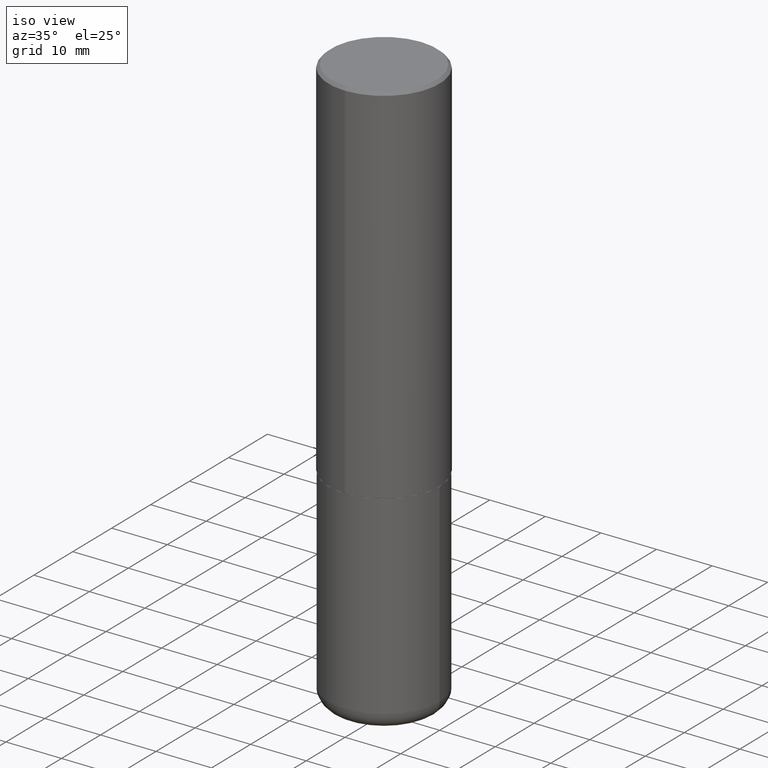
[diagram: clean part render]
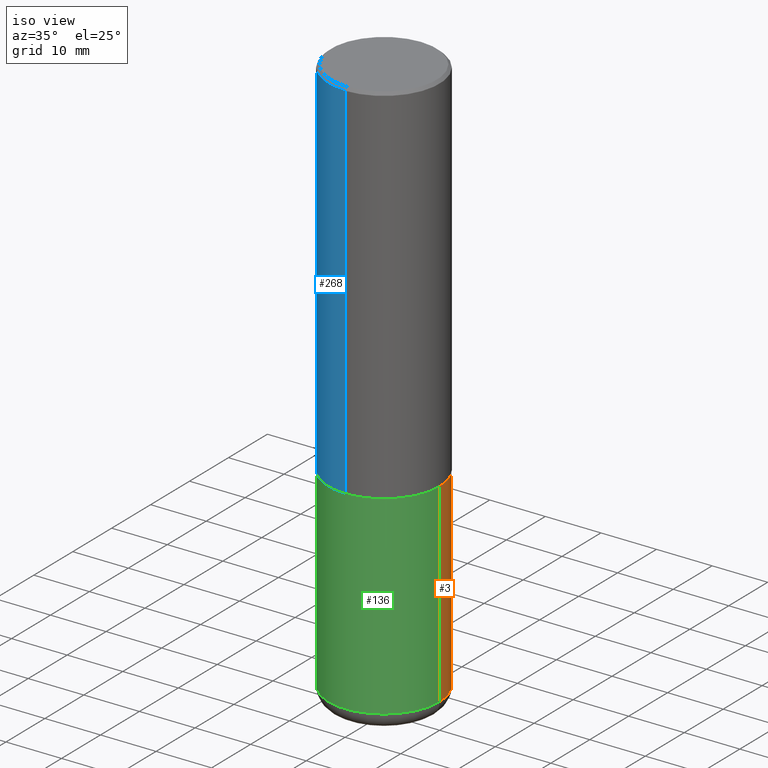
[diagram: same view with three faces highlighted in distinct colors, each labeled with its STEP entity id]
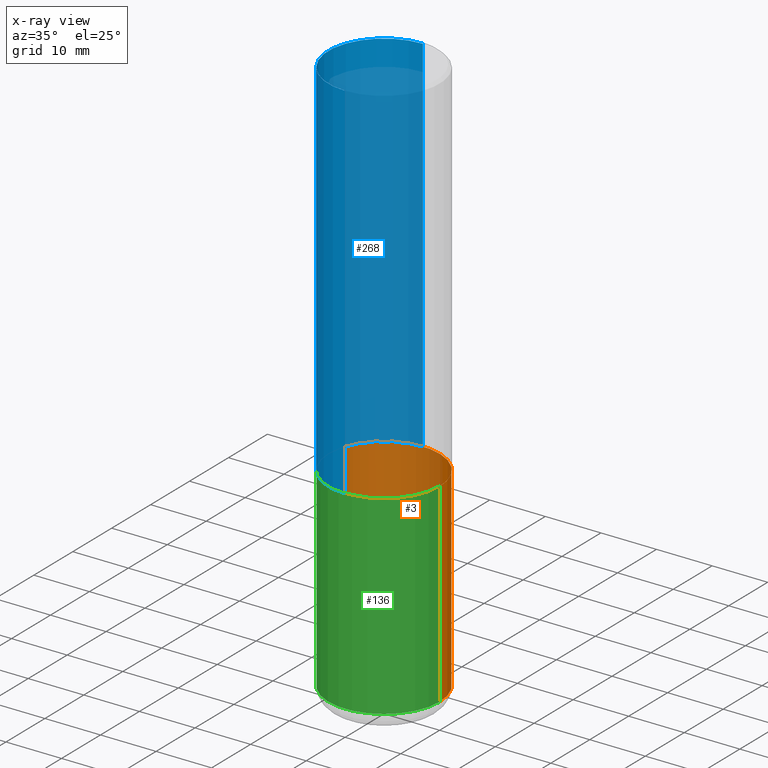
[diagram: x-ray of the same camera — body ghosted, the three highlighted faces saturated]
A machine part, iso view with three faces highlighted in distinct colors.
The next image is the same camera in x-ray (body ghosted, the three faces saturated) — at least one of them is partly hidden behind the body in this view.
Their STEP definitions:

[orange] entity #3 — the highlighted cylindrical surface (partial cylindrical patch) has radius 10 mm, axis along (-0, 0, 1).
#3 = ADVANCED_FACE ( 'NONE', ( #334 ), #310, .T. ) ;
#11 = EDGE_CURVE ( 'NONE', #249, #54, #410, .T. ) ;
#23 = DIRECTION ( 'NONE',  ( 1.000000000000000000, -6.982962677686267499E-15, 0.000000000000000000 ) ) ;
#25 = ORIENTED_EDGE ( 'NONE', *, *, #107, .T. ) ;
#39 = CIRCLE ( 'NONE', #179, 0.3937000000000000499 ) ;
#54 = VERTEX_POINT ( 'NONE', #199 ) ;
#56 = ORIENTED_EDGE ( 'NONE', *, *, #11, .T. ) ;
#66 = CARTESIAN_POINT ( 'NONE',  ( 0.3937000000000000499, -1.182145751705511584E-14, -2.598400000000000265 ) ) ;
#91 = VERTEX_POINT ( 'NONE', #66 ) ;
#94 = VERTEX_POINT ( 'NONE', #171 ) ;
#107 = EDGE_CURVE ( 'NONE', #94, #249, #162, .T. ) ;
#127 = DIRECTION ( 'NONE',  ( 1.000000000000000000, -6.982962677686265922E-15, 4.876176775795935793E-29 ) ) ;
#137 = DIRECTION ( 'NONE',  ( 1.000000000000000000, -6.982962677686267499E-15, 0.000000000000000000 ) ) ;
#151 = CARTESIAN_POINT ( 'NONE',  ( 6.354306145991459756E-29, -9.072265110850031044E-15, -2.598400000000000265 ) ) ;
#154 = CARTESIAN_POINT ( 'NONE',  ( 0.000000000000000000, 0.000000000000000000, 0.000000000000000000 ) ) ;
#160 = DIRECTION ( 'NONE',  ( -2.445468806185136877E-29, 3.491481338843145188E-15, 1.000000000000000000 ) ) ;
#162 = CIRCLE ( 'NONE', #185, 0.3937000000000000499 ) ;
#171 = CARTESIAN_POINT ( 'NONE',  ( 0.3937000000000000499, -1.663271880198097216E-14, -3.976400000000000823 ) ) ;
#176 = CARTESIAN_POINT ( 'NONE',  ( -0.3937000000000000499, -1.108611964508837021E-14, -3.976400000000000823 ) ) ;
#179 = AXIS2_PLACEMENT_3D ( 'NONE', #151, #284, #23 ) ;
#183 = LINE ( 'NONE', #409, #408 ) ;
#185 = AXIS2_PLACEMENT_3D ( 'NONE', #393, #324, #137 ) ;
#199 = CARTESIAN_POINT ( 'NONE',  ( -0.3937000000000000499, -8.680489002625445206E-15, -2.598400000000000265 ) ) ;
#227 = CARTESIAN_POINT ( 'NONE',  ( -0.3937000000000000499, 2.797406750687514786E-15, -1.936584745033356735E-29 ) ) ;
#247 = ORIENTED_EDGE ( 'NONE', *, *, #383, .F. ) ;
#249 = VERTEX_POINT ( 'NONE', #176 ) ;
#258 = DIRECTION ( 'NONE',  ( -2.445468806185136877E-29, 3.491481338843145188E-15, 1.000000000000000000 ) ) ;
#276 = EDGE_LOOP ( 'NONE', ( #25, #56, #417, #247 ) ) ;
#281 = DIRECTION ( 'NONE',  ( -2.445468806185136597E-29, 3.491481338843145583E-15, 1.000000000000000000 ) ) ;
#284 = DIRECTION ( 'NONE',  ( -2.445468806185136597E-29, 3.491481338843145583E-15, 1.000000000000000000 ) ) ;
#310 = CYLINDRICAL_SURFACE ( 'NONE', #376, 0.3937000000000000499 ) ;
#324 = DIRECTION ( 'NONE',  ( -2.445468806185136597E-29, 3.491481338843145583E-15, 1.000000000000000000 ) ) ;
#334 = FACE_OUTER_BOUND ( 'NONE', #276, .T. ) ;
#376 = AXIS2_PLACEMENT_3D ( 'NONE', #154, #281, #127 ) ;
#383 = EDGE_CURVE ( 'NONE', #94, #91, #183, .T. ) ;
#385 = VECTOR ( 'NONE', #258, 39.37007874015748143 ) ;
#391 = EDGE_CURVE ( 'NONE', #91, #54, #39, .T. ) ;
#393 = CARTESIAN_POINT ( 'NONE',  ( 9.724162160914578265E-29, -1.388352639577588736E-14, -3.976400000000000823 ) ) ;
#408 = VECTOR ( 'NONE', #160, 39.37007874015748143 ) ;
#409 = CARTESIAN_POINT ( 'NONE',  ( 0.3937000000000000499, -2.749192406205083217E-15, 1.919750796630860172E-29 ) ) ;
#410 = LINE ( 'NONE', #227, #385 ) ;
#417 = ORIENTED_EDGE ( 'NONE', *, *, #391, .F. ) ;

[blue] entity #268 — the highlighted cylindrical surface (partial cylindrical patch) has radius 10 mm, axis along (-0, 0, 1).
#9 = AXIS2_PLACEMENT_3D ( 'NONE', #126, #55, #341 ) ;
#30 = VERTEX_POINT ( 'NONE', #342 ) ;
#51 = DIRECTION ( 'NONE',  ( -2.447728531270410110E-29, 3.488245283905469588E-15, 1.000000000000000000 ) ) ;
#55 = DIRECTION ( 'NONE',  ( -2.447728531270410110E-29, 3.488245283905469588E-15, 1.000000000000000000 ) ) ;
#88 = ORIENTED_EDGE ( 'NONE', *, *, #405, .F. ) ;
#96 = VECTOR ( 'NONE', #211, 39.37007874015748143 ) ;
#106 = LINE ( 'NONE', #275, #96 ) ;
#116 = EDGE_LOOP ( 'NONE', ( #88, #220, #311, #317 ) ) ;
#126 = CARTESIAN_POINT ( 'NONE',  ( 4.895457062540840994E-31, -6.976490567810969350E-17, -0.02000000000000008715 ) ) ;
#141 = FACE_OUTER_BOUND ( 'NONE', #116, .T. ) ;
#149 = VERTEX_POINT ( 'NONE', #390 ) ;
#153 = CARTESIAN_POINT ( 'NONE',  ( -2.700978061722651252E-15, -0.3937000000000001054, -0.01999999999999870978 ) ) ;
#155 = CIRCLE ( 'NONE', #9, 0.3937000000000000499 ) ;
#157 = CARTESIAN_POINT ( 'NONE',  ( 6.357730087121764723E-29, -9.060368300416068565E-15, -2.597400000000000375 ) ) ;
#178 = DIRECTION ( 'NONE',  ( -6.982962677686265922E-15, -1.000000000000000000, 3.488245283905469194E-15 ) ) ;
#181 = EDGE_CURVE ( 'NONE', #149, #356, #106, .T. ) ;
#189 = LINE ( 'NONE', #414, #354 ) ;
#204 = AXIS2_PLACEMENT_3D ( 'NONE', #242, #364, #178 ) ;
#208 = CARTESIAN_POINT ( 'NONE',  ( 2.749192406205083217E-15, 0.3936999999999999389, -0.02000000000000146105 ) ) ;
#211 = DIRECTION ( 'NONE',  ( -2.447728531270410390E-29, 3.488245283905469982E-15, 1.000000000000000000 ) ) ;
#220 = ORIENTED_EDGE ( 'NONE', *, *, #361, .T. ) ;
#221 = DIRECTION ( 'NONE',  ( -2.447728531270410390E-29, 3.488245283905469982E-15, 1.000000000000000000 ) ) ;
#230 = CIRCLE ( 'NONE', #378, 0.3937000000000002720 ) ;
#242 = CARTESIAN_POINT ( 'NONE',  ( 0.000000000000000000, 0.000000000000000000, 0.000000000000000000 ) ) ;
#257 = DIRECTION ( 'NONE',  ( -6.982962677686265922E-15, -1.000000000000000000, 4.163344669033672479E-15 ) ) ;
#268 = ADVANCED_FACE ( 'NONE', ( #141 ), #400, .T. ) ;
#275 = CARTESIAN_POINT ( 'NONE',  ( -2.749192406205084005E-15, -0.3937000000000001609, 1.373322168273583828E-15 ) ) ;
#311 = ORIENTED_EDGE ( 'NONE', *, *, #181, .T. ) ;
#315 = VERTEX_POINT ( 'NONE', #208 ) ;
#317 = ORIENTED_EDGE ( 'NONE', *, *, #399, .F. ) ;
#341 = DIRECTION ( 'NONE',  ( -6.982962677686265133E-15, -1.000000000000000000, 3.491137977679279424E-15 ) ) ;
#342 = CARTESIAN_POINT ( 'NONE',  ( 2.797406750687547524E-15, 0.3936999999999912236, -2.597400000000002152 ) ) ;
#354 = VECTOR ( 'NONE', #221, 39.37007874015748143 ) ;
#356 = VERTEX_POINT ( 'NONE', #153 ) ;
#361 = EDGE_CURVE ( 'NONE', #30, #149, #230, .T. ) ;
#364 = DIRECTION ( 'NONE',  ( -2.447728531270410110E-29, 3.488245283905469588E-15, 1.000000000000000000 ) ) ;
#378 = AXIS2_PLACEMENT_3D ( 'NONE', #157, #51, #257 ) ;
#390 = CARTESIAN_POINT ( 'NONE',  ( -2.749192406205021291E-15, -0.3937000000000093758, -2.597399999999999043 ) ) ;
#399 = EDGE_CURVE ( 'NONE', #315, #356, #155, .T. ) ;
#400 = CYLINDRICAL_SURFACE ( 'NONE', #204, 0.3937000000000001609 ) ;
#405 = EDGE_CURVE ( 'NONE', #30, #315, #189, .T. ) ;
#414 = CARTESIAN_POINT ( 'NONE',  ( 2.797406750687515181E-15, 0.3937000000000001609, -1.373322168273583828E-15 ) ) ;

[green] entity #136 — the highlighted cylindrical surface (partial cylindrical patch) has radius 10 mm, axis along (-0, 0, 1).
#6 = DIRECTION ( 'NONE',  ( -2.445468806185136597E-29, 3.491481338843145583E-15, 1.000000000000000000 ) ) ;
#8 = DIRECTION ( 'NONE',  ( 1.000000000000000000, -6.982962677686265922E-15, 4.876176775795935793E-29 ) ) ;
#11 = EDGE_CURVE ( 'NONE', #249, #54, #410, .T. ) ;
#32 = CARTESIAN_POINT ( 'NONE',  ( 0.000000000000000000, 0.000000000000000000, 0.000000000000000000 ) ) ;
#37 = CARTESIAN_POINT ( 'NONE',  ( 6.354306145991459756E-29, -9.072265110850031044E-15, -2.598400000000000265 ) ) ;
#40 = DIRECTION ( 'NONE',  ( -2.445468806185136597E-29, 3.491481338843145583E-15, 1.000000000000000000 ) ) ;
#54 = VERTEX_POINT ( 'NONE', #199 ) ;
#60 = CIRCLE ( 'NONE', #147, 0.3937000000000000499 ) ;
#62 = FACE_OUTER_BOUND ( 'NONE', #256, .T. ) ;
#64 = ORIENTED_EDGE ( 'NONE', *, *, #383, .T. ) ;
#66 = CARTESIAN_POINT ( 'NONE',  ( 0.3937000000000000499, -1.182145751705511584E-14, -2.598400000000000265 ) ) ;
#69 = EDGE_CURVE ( 'NONE', #54, #91, #168, .T. ) ;
#89 = ORIENTED_EDGE ( 'NONE', *, *, #69, .F. ) ;
#91 = VERTEX_POINT ( 'NONE', #66 ) ;
#94 = VERTEX_POINT ( 'NONE', #171 ) ;
#123 = ORIENTED_EDGE ( 'NONE', *, *, #209, .T. ) ;
#132 = DIRECTION ( 'NONE',  ( 1.000000000000000000, -6.982962677686267499E-15, 0.000000000000000000 ) ) ;
#133 = AXIS2_PLACEMENT_3D ( 'NONE', #37, #6, #132 ) ;
#136 = ADVANCED_FACE ( 'NONE', ( #62 ), #322, .T. ) ;
#147 = AXIS2_PLACEMENT_3D ( 'NONE', #175, #40, #360 ) ;
#160 = DIRECTION ( 'NONE',  ( -2.445468806185136877E-29, 3.491481338843145188E-15, 1.000000000000000000 ) ) ;
#168 = CIRCLE ( 'NONE', #133, 0.3937000000000000499 ) ;
#171 = CARTESIAN_POINT ( 'NONE',  ( 0.3937000000000000499, -1.663271880198097216E-14, -3.976400000000000823 ) ) ;
#175 = CARTESIAN_POINT ( 'NONE',  ( 9.724162160914578265E-29, -1.388352639577588736E-14, -3.976400000000000823 ) ) ;
#176 = CARTESIAN_POINT ( 'NONE',  ( -0.3937000000000000499, -1.108611964508837021E-14, -3.976400000000000823 ) ) ;
#183 = LINE ( 'NONE', #409, #408 ) ;
#199 = CARTESIAN_POINT ( 'NONE',  ( -0.3937000000000000499, -8.680489002625445206E-15, -2.598400000000000265 ) ) ;
#201 = DIRECTION ( 'NONE',  ( -2.445468806185136597E-29, 3.491481338843145583E-15, 1.000000000000000000 ) ) ;
#209 = EDGE_CURVE ( 'NONE', #249, #94, #60, .T. ) ;
#227 = CARTESIAN_POINT ( 'NONE',  ( -0.3937000000000000499, 2.797406750687514786E-15, -1.936584745033356735E-29 ) ) ;
#249 = VERTEX_POINT ( 'NONE', #176 ) ;
#256 = EDGE_LOOP ( 'NONE', ( #373, #123, #64, #89 ) ) ;
#258 = DIRECTION ( 'NONE',  ( -2.445468806185136877E-29, 3.491481338843145188E-15, 1.000000000000000000 ) ) ;
#322 = CYLINDRICAL_SURFACE ( 'NONE', #363, 0.3937000000000000499 ) ;
#360 = DIRECTION ( 'NONE',  ( 1.000000000000000000, -6.982962677686267499E-15, 0.000000000000000000 ) ) ;
#363 = AXIS2_PLACEMENT_3D ( 'NONE', #32, #201, #8 ) ;
#373 = ORIENTED_EDGE ( 'NONE', *, *, #11, .F. ) ;
#383 = EDGE_CURVE ( 'NONE', #94, #91, #183, .T. ) ;
#385 = VECTOR ( 'NONE', #258, 39.37007874015748143 ) ;
#408 = VECTOR ( 'NONE', #160, 39.37007874015748143 ) ;
#409 = CARTESIAN_POINT ( 'NONE',  ( 0.3937000000000000499, -2.749192406205083217E-15, 1.919750796630860172E-29 ) ) ;
#410 = LINE ( 'NONE', #227, #385 ) ;